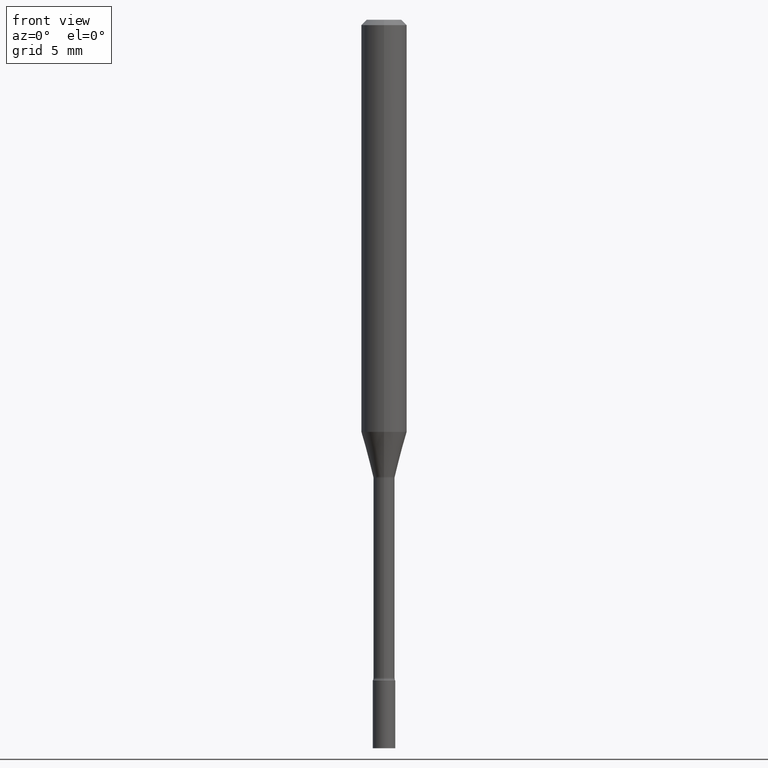
[diagram: clean part render]
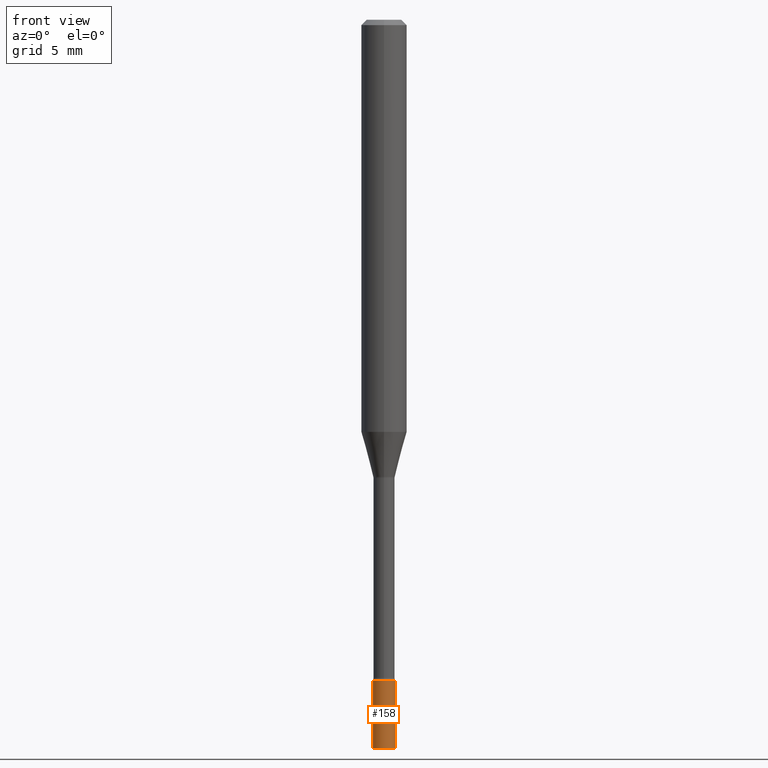
[diagram: same view with one face highlighted and labeled with its STEP entity id]
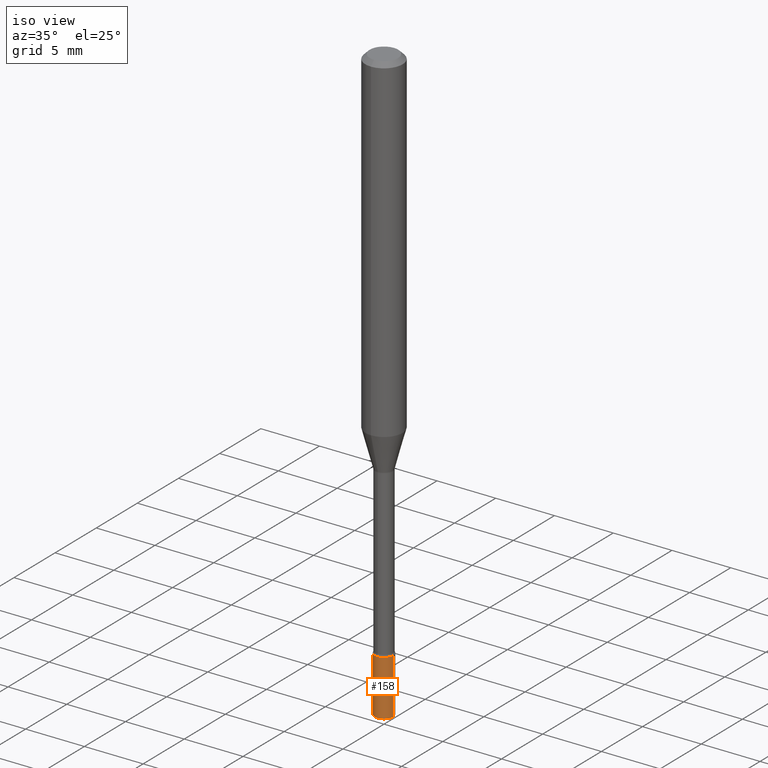
[diagram: same view with one face highlighted and labeled with its STEP entity id]
A machine part, front view. The second image highlights one B-rep face of the part: STEP entity #158.
A second angle (iso view) of the same face is appended — the face is thin or edge-on in the first view.
In plain terms, the highlighted cylindrical surface (edge-blend (fillet) strip) has radius 0.7874 mm, axis along (-0, 0, 1).
Its self-contained STEP definition (entity closure, byte-faithful):
#23 = CARTESIAN_POINT ( 'NONE',  ( -0.03099999999999999978, -6.437986665088246838E-15, -2.000000000000000000 ) ) ;
#26 = LINE ( 'NONE', #356, #118 ) ;
#28 = AXIS2_PLACEMENT_3D ( 'NONE', #260, #222, #323 ) ;
#44 = VERTEX_POINT ( 'NONE', #116 ) ;
#53 = DIRECTION ( 'NONE',  ( 1.000000000000000000, -6.982962677686270655E-15, 0.000000000000000000 ) ) ;
#66 = VERTEX_POINT ( 'NONE', #430 ) ;
#71 = DIRECTION ( 'NONE',  ( -2.445468806185136877E-29, 3.491481338843145188E-15, 1.000000000000000000 ) ) ;
#77 = EDGE_CURVE ( 'NONE', #296, #66, #26, .T. ) ;
#115 = CARTESIAN_POINT ( 'NONE',  ( 0.03099999999999999978, -7.199434520694564708E-15, -2.000000000000000000 ) ) ;
#116 = CARTESIAN_POINT ( 'NONE',  ( -0.03099999999999999978, -6.437986665088246838E-15, -1.813999999999999835 ) ) ;
#118 = VECTOR ( 'NONE', #71, 39.37007874015748143 ) ;
#119 = DIRECTION ( 'NONE',  ( 1.000000000000000000, -6.982962677686270655E-15, 0.000000000000000000 ) ) ;
#158 = ADVANCED_FACE ( 'NONE', ( #213 ), #419, .T. ) ;
#187 = ORIENTED_EDGE ( 'NONE', *, *, #427, .F. ) ;
#212 = AXIS2_PLACEMENT_3D ( 'NONE', #518, #477, #119 ) ;
#213 = FACE_OUTER_BOUND ( 'NONE', #363, .T. ) ;
#222 = DIRECTION ( 'NONE',  ( -2.445468806185136597E-29, 3.491481338843145583E-15, 1.000000000000000000 ) ) ;
#223 = DIRECTION ( 'NONE',  ( -2.445468806185136877E-29, 3.491481338843145188E-15, 1.000000000000000000 ) ) ;
#232 = LINE ( 'NONE', #464, #441 ) ;
#260 = CARTESIAN_POINT ( 'NONE',  ( 0.000000000000000000, 0.000000000000000000, 0.000000000000000000 ) ) ;
#281 = AXIS2_PLACEMENT_3D ( 'NONE', #424, #505, #53 ) ;
#284 = CIRCLE ( 'NONE', #281, 0.03099999999999999978 ) ;
#294 = EDGE_CURVE ( 'NONE', #344, #296, #335, .T. ) ;
#296 = VERTEX_POINT ( 'NONE', #115 ) ;
#323 = DIRECTION ( 'NONE',  ( 1.000000000000000000, -6.982962677686266711E-15, 4.876176775795935232E-29 ) ) ;
#335 = CIRCLE ( 'NONE', #212, 0.03099999999999999978 ) ;
#344 = VERTEX_POINT ( 'NONE', #23 ) ;
#356 = CARTESIAN_POINT ( 'NONE',  ( 0.03099999999999999978, -2.164718430082742572E-16, 1.511614800496739984E-30 ) ) ;
#362 = EDGE_CURVE ( 'NONE', #344, #44, #232, .T. ) ;
#363 = EDGE_LOOP ( 'NONE', ( #386, #373, #453, #187 ) ) ;
#373 = ORIENTED_EDGE ( 'NONE', *, *, #294, .T. ) ;
#386 = ORIENTED_EDGE ( 'NONE', *, *, #362, .F. ) ;
#419 = CYLINDRICAL_SURFACE ( 'NONE', #28, 0.03099999999999999978 ) ;
#424 = CARTESIAN_POINT ( 'NONE',  ( 4.436080414419837365E-29, -6.333547148661465016E-15, -1.813999999999999835 ) ) ;
#427 = EDGE_CURVE ( 'NONE', #44, #66, #284, .T. ) ;
#430 = CARTESIAN_POINT ( 'NONE',  ( 0.03099999999999999978, -6.550018991669739348E-15, -1.813999999999999835 ) ) ;
#441 = VECTOR ( 'NONE', #223, 39.37007874015748143 ) ;
#453 = ORIENTED_EDGE ( 'NONE', *, *, #77, .T. ) ;
#464 = CARTESIAN_POINT ( 'NONE',  ( -0.03099999999999999978, 2.202682480856310560E-16, -1.524869877979020612E-30 ) ) ;
#477 = DIRECTION ( 'NONE',  ( -2.445468806185136597E-29, 3.491481338843145583E-15, 1.000000000000000000 ) ) ;
#505 = DIRECTION ( 'NONE',  ( -2.445468806185136597E-29, 3.491481338843145583E-15, 1.000000000000000000 ) ) ;
#518 = CARTESIAN_POINT ( 'NONE',  ( 4.890937612370273194E-29, -6.982962677686291165E-15, -2.000000000000000000 ) ) ;